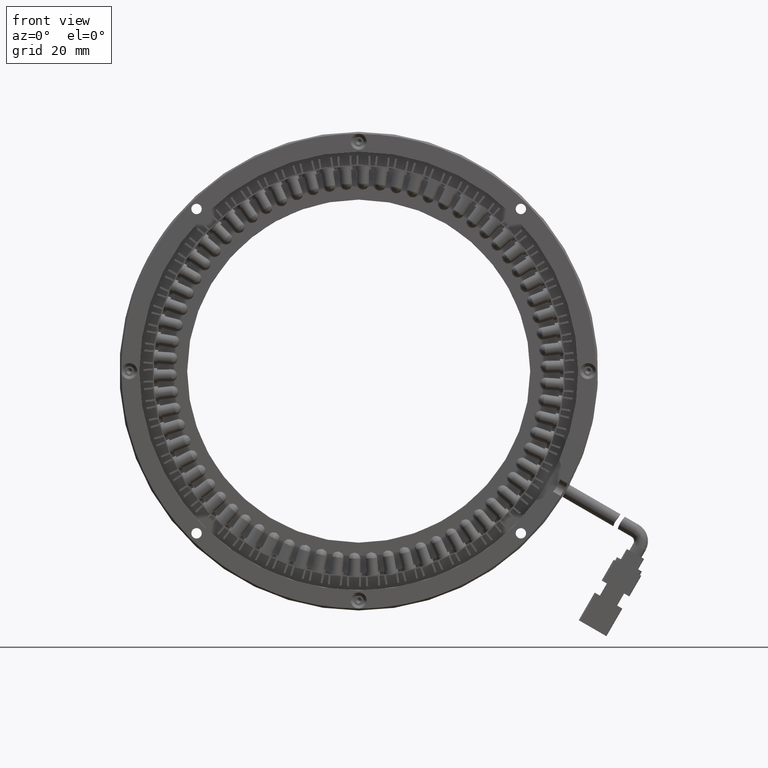
[diagram: clean part render]
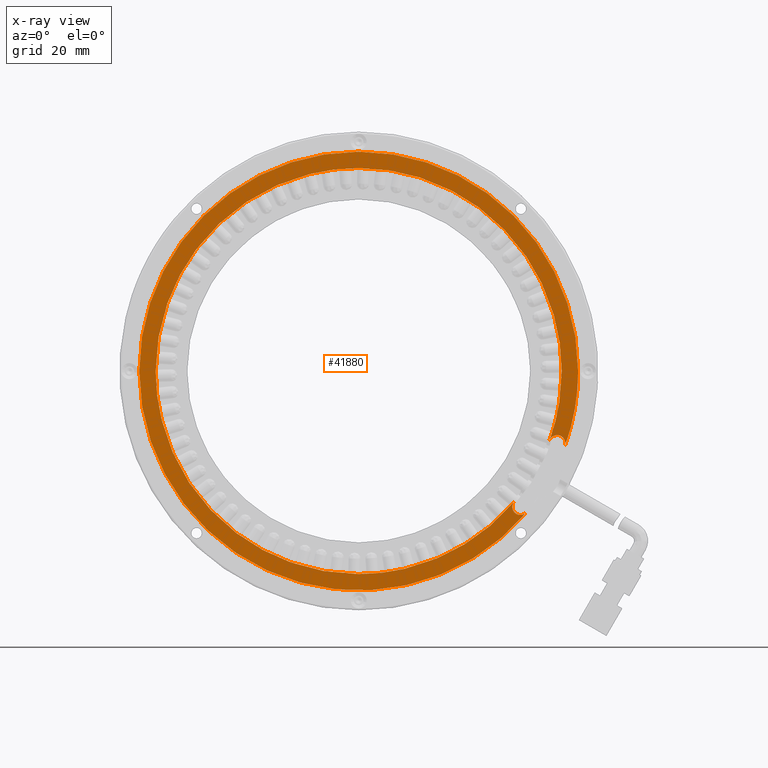
[diagram: x-ray — body ghosted, one internal face saturated and labeled with its STEP entity id]
A machine part, front view, then the same camera in x-ray: the body is ghosted and one INTERNAL B-rep face — a face not visible from any outside direction — is saturated and labeled: STEP entity #41880.
In plain terms, the highlighted planar face has unit normal (0, -1, 0).
Its self-contained STEP definition (entity closure, byte-faithful):
#260 = CARTESIAN_POINT ( 'NONE',  ( 33.89803467176491100, 26.51889671361999800, 45.74980730221788900 ) ) ;
#2141 = CARTESIAN_POINT ( 'NONE',  ( 108.2100366687376400, 26.51889671361999800, -17.57448026055307400 ) ) ;
#2214 = VERTEX_POINT ( 'NONE', #11211 ) ;
#2460 = EDGE_CURVE ( 'NONE', #64003, #14869, #48027, .T. ) ;
#2951 = CARTESIAN_POINT ( 'NONE',  ( 94.99566523257891500, 26.51889671361999800, -34.54901367626943900 ) ) ;
#3409 = CARTESIAN_POINT ( 'NONE',  ( 58.12378614070481600, 26.51889671362000600, 50.90000000000001300 ) ) ;
#3610 = CARTESIAN_POINT ( 'NONE',  ( 1.456245109549989100, 26.51889671361700000, 6.735557395310442600E-015 ) ) ;
#3634 = CARTESIAN_POINT ( 'NONE',  ( 64.75260245585306500, 26.51889671361999500, 50.24703753962068500 ) ) ;
#3861 = CARTESIAN_POINT ( 'NONE',  ( 93.62473146255430800, 26.51889671361999800, 34.81509095276935300 ) ) ;
#3880 = CARTESIAN_POINT ( 'NONE',  ( 94.25717763691881100, 26.51889671361999800, -34.13694564429200500 ) ) ;
#3930 = CARTESIAN_POINT ( 'NONE',  ( 56.45624510954999000, 26.51889671361700400, 0.0000000000000000000 ) ) ;
#4031 = CARTESIAN_POINT ( 'NONE',  ( 95.44790726429383200, 26.51889671361582800, -32.71788933304571900 ) ) ;
#4073 = CARTESIAN_POINT ( 'NONE',  ( 106.9479367558927800, 26.51889671362000200, 6.646161897768612500 ) ) ;
#4088 = CARTESIAN_POINT ( 'NONE',  ( 85.97272771408704300, 26.51889671361999800, -41.50927740812717600 ) ) ;
#4587 = CARTESIAN_POINT ( 'NONE',  ( 56.45624510954652200, 26.51889671361703900, -50.89999999999999900 ) ) ;
#4798 = CARTESIAN_POINT ( 'NONE',  ( 10.70644750498303900, 26.51889671361999800, -22.55824240564128000 ) ) ;
#5294 = CARTESIAN_POINT ( 'NONE',  ( 43.25682899989948300, 26.51889671362000600, 49.27162612192815100 ) ) ;
#5442 = ORIENTED_EDGE ( 'NONE', *, *, #21423, .T. ) ;
#5682 = DIRECTION ( 'NONE',  ( 0.0000000000000000000, 0.0000000000000000000, 1.000000000000000000 ) ) ;
#6713 = B_SPLINE_CURVE_WITH_KNOTS ( 'NONE', 3,
 ( #50196, #60085, #40459, #10783, #45411, #15808, #50419, #20764, #55351, #25753 ),
 .UNSPECIFIED., .F., .F.,
 ( 4, 2, 2, 2, 4 ),
 ( 0.8181776711582123800, 0.8636332533686592600, 0.9090888355791062500, 0.9545444177895531200, 1.000000000000000000 ),
 .UNSPECIFIED. ) ;
#7174 = CARTESIAN_POINT ( 'NONE',  ( 108.2629940726218200, 26.51889671361625000, -18.10996659951811300 ) ) ;
#7970 = CARTESIAN_POINT ( 'NONE',  ( 95.01120421857626800, 26.51889671361999800, -33.57493728174080900 ) ) ;
#8123 = ORIENTED_EDGE ( 'NONE', *, *, #49982, .T. ) ;
#8650 = CARTESIAN_POINT ( 'NONE',  ( 69.63857196180636300, 26.51889671361999500, 49.19161618714368700 ) ) ;
#8794 = CARTESIAN_POINT ( 'NONE',  ( 108.2629940726218200, 26.51889671361625000, -18.10996659951811300 ) ) ;
#8799 = EDGE_CURVE ( 'NONE', #15514, #55473, #43258, .T. ) ;
#8874 = CARTESIAN_POINT ( 'NONE',  ( 96.85871171428804900, 26.51889671361999800, 31.00377232226369600 ) ) ;
#8943 = DIRECTION ( 'NONE',  ( 1.000000000000000000, 6.308085367188390000E-017, 0.0000000000000000000 ) ) ;
#8975 = B_SPLINE_CURVE_WITH_KNOTS ( 'NONE', 3,
 ( #9484, #39195, #44121, #14491 ),
 .UNSPECIFIED., .F., .F.,
 ( 4, 4 ),
 ( 0.8182654502144257600, 1.000000000000000000 ),
 .UNSPECIFIED. ) ;
#9088 = CARTESIAN_POINT ( 'NONE',  ( 107.3562008130526700, 26.51889671361999800, 1.666455289235170100 ) ) ;
#9103 = CARTESIAN_POINT ( 'NONE',  ( 81.27830641589346800, 26.51889671361999800, -44.47592752031182100 ) ) ;
#9484 = CARTESIAN_POINT ( 'NONE',  ( 108.2629940726218200, 26.51889671361625000, -18.10996659951811300 ) ) ;
#9600 = CARTESIAN_POINT ( 'NONE',  ( 49.80849226404254900, 26.51889671362000600, -50.49155327858623800 ) ) ;
#9823 = CARTESIAN_POINT ( 'NONE',  ( 7.184622262506801200, 26.51889671361999800, -13.19944935610017100 ) ) ;
#9929 = EDGE_CURVE ( 'NONE', #62985, #2214, #6713, .T. ) ;
#10106 = CARTESIAN_POINT ( 'NONE',  ( 7.184541814664910000, 26.51889671361999800, 13.19939738584012500 ) ) ;
#10139 = ORIENTED_EDGE ( 'NONE', *, *, #8799, .T. ) ;
#10319 = CARTESIAN_POINT ( 'NONE',  ( 49.80832919296634000, 26.51889671361999800, 50.49150431269133300 ) ) ;
#10433 = CARTESIAN_POINT ( 'NONE',  ( 108.1393392527727400, 26.51889671361639600, -18.81110788290745400 ) ) ;
#10783 = CARTESIAN_POINT ( 'NONE',  ( 107.0335753954914800, 26.51889671361999800, -5.910449698887409100 ) ) ;
#11211 = CARTESIAN_POINT ( 'NONE',  ( 104.2865995075451200, 26.51889671361615100, -17.40882529527371900 ) ) ;
#11445 = ORIENTED_EDGE ( 'NONE', *, *, #60926, .T. ) ;
#11798 = CARTESIAN_POINT ( 'NONE',  ( 97.31801767398215500, 26.51889671361999800, -36.08560393289999300 ) ) ;
#11846 = B_SPLINE_CURVE_WITH_KNOTS ( 'NONE', 3,
 ( #25802, #15636, #45682, #16068, #50675, #21027, #55621, #26011, #60564, #30961 ),
 .UNSPECIFIED., .F., .F.,
 ( 4, 2, 2, 2, 4 ),
 ( 0.0000000000000000000, 0.2500000000000000000, 0.5000000000000000000, 0.7500000000000000000, 1.000000000000000000 ),
 .UNSPECIFIED. ) ;
#12944 = CARTESIAN_POINT ( 'NONE',  ( 95.22037118512243100, 26.51889671361999800, -33.03152639169043400 ) ) ;
#13624 = CARTESIAN_POINT ( 'NONE',  ( 74.39672999791444900, 26.51889671361999800, 47.66257905183898200 ) ) ;
#13845 = CARTESIAN_POINT ( 'NONE',  ( 99.70370530092894500, 26.51889671361999800, 26.89335504278859200 ) ) ;
#14096 = CARTESIAN_POINT ( 'NONE',  ( 76.28881724357131600, 26.51889671361999800, -46.91387789170980900 ) ) ;
#14401 = VERTEX_POINT ( 'NONE', #17211 ) ;
#14491 = CARTESIAN_POINT ( 'NONE',  ( 108.1393392527727400, 26.51889671361639600, -18.81110788290745400 ) ) ;
#14613 = CARTESIAN_POINT ( 'NONE',  ( 43.25678297674848200, 26.51889671362000600, -49.27168707802127300 ) ) ;
#14839 = CARTESIAN_POINT ( 'NONE',  ( 5.556277853956411100, 26.51889671362000200, -3.333375449674135000 ) ) ;
#14869 = VERTEX_POINT ( 'NONE', #51561 ) ;
#15107 = CARTESIAN_POINT ( 'NONE',  ( 10.70635846373137800, 26.51889671361999800, 22.55820712775216200 ) ) ;
#15331 = CARTESIAN_POINT ( 'NONE',  ( 54.78904028817538600, 26.51889671362000200, 50.90000000000001300 ) ) ;
#15514 = VERTEX_POINT ( 'NONE', #21985 ) ;
#15636 = CARTESIAN_POINT ( 'NONE',  ( 104.3584792415676800, 26.51889671361999800, -17.21133734924919900 ) ) ;
#15808 = CARTESIAN_POINT ( 'NONE',  ( 106.3261792178825700, 26.51889671361999800, -10.29540515301082200 ) ) ;
#16068 = CARTESIAN_POINT ( 'NONE',  ( 104.7143801546050700, 26.51889671361999800, -16.69538030267937900 ) ) ;
#16103 = CARTESIAN_POINT ( 'NONE',  ( 106.4823319166383400, 26.51889671361999800, -16.05996658908999900 ) ) ;
#17211 = CARTESIAN_POINT ( 'NONE',  ( 56.45624510953188500, 26.51889671361704600, 50.90000000000001300 ) ) ;
#17218 = ORIENTED_EDGE ( 'NONE', *, *, #33366, .T. ) ;
#17678 = AXIS2_PLACEMENT_3D ( 'NONE', #56667, #41514, #55129 ) ;
#17752 = CARTESIAN_POINT ( 'NONE',  ( 97.01829837268245200, 26.51889671361625000, -36.08560393289998600 ) ) ;
#17966 = CARTESIAN_POINT ( 'NONE',  ( 95.44790726429383200, 26.51889671361582800, -32.71788933304571900 ) ) ;
#18614 = ORIENTED_EDGE ( 'NONE', *, *, #61867, .T. ) ;
#18661 = CARTESIAN_POINT ( 'NONE',  ( 78.98088627312654400, 26.51889671362000200, 45.67519132533117000 ) ) ;
#18866 = CARTESIAN_POINT ( 'NONE',  ( 102.1322153879976300, 26.51889671361999500, 22.52331600292138300 ) ) ;
#19093 = CARTESIAN_POINT ( 'NONE',  ( 71.06357186928032400, 26.51889671361999800, -48.79414781736165500 ) ) ;
#19596 = CARTESIAN_POINT ( 'NONE',  ( 33.89797764238963400, 26.51889671362000200, -45.74985810894369800 ) ) ;
#19818 = B_SPLINE_CURVE_WITH_KNOTS ( 'NONE', 3,
 ( #17752, #62053, #27678, #62255, #32674, #2951, #37644, #7970, #42620, #12944, #47580, #17966 ),
 .UNSPECIFIED., .F., .F.,
 ( 4, 2, 2, 2, 2, 4 ),
 ( 0.0000000000000000000, 0.2500000000000000000, 0.5000000000000000000, 0.7500000000000000000, 0.8750000000000000000, 1.000000000000000000 ),
 .UNSPECIFIED. ) ;
#20074 = CARTESIAN_POINT ( 'NONE',  ( 15.98631760021237000, 26.51889671361999800, 31.05011762157835900 ) ) ;
#20106 = B_SPLINE_CURVE_WITH_KNOTS ( 'NONE', 3,
 ( #23850, #3880, #28785, #63387, #33789, #4088, #38820, #9103, #43732, #14096, #48725, #19093, #53688, #24079, #58615, #29012, #63605, #34009 ),
 .UNSPECIFIED., .F., .F.,
 ( 4, 2, 2, 2, 2, 2, 2, 2, 4 ),
 ( 0.0000000000000000000, 0.1250000000000000000, 0.2500000000000000000, 0.3750000000000000000, 0.5000000000000000000, 0.6250000000000000000, 0.7500000000000000000, 0.8750000000000000000, 1.000000000000000000 ),
 .UNSPECIFIED. ) ;
#20764 = CARTESIAN_POINT ( 'NONE',  ( 105.2387383753806300, 26.51889671361999800, -14.60417290471351100 ) ) ;
#21027 = CARTESIAN_POINT ( 'NONE',  ( 105.2091137337671400, 26.51889671361999800, -16.31021719822989600 ) ) ;
#21309 = ORIENTED_EDGE ( 'NONE', *, *, #9929, .T. ) ;
#21423 = EDGE_CURVE ( 'NONE', #54149, #60811, #8975, .T. ) ;
#21871 = CARTESIAN_POINT ( 'NONE',  ( 107.3562518457098800, 26.51889671361706700, 4.670248026143931300E-010 ) ) ;
#21961 = CARTESIAN_POINT ( 'NONE',  ( 106.7495667950427000, 26.51889671362000200, -16.11324002181363800 ) ) ;
#21985 = CARTESIAN_POINT ( 'NONE',  ( 98.58868948107824800, 26.51889671361639600, -35.35331853275853600 ) ) ;
#23564 = EDGE_CURVE ( 'NONE', #56010, #23963, #39183, .T. ) ;
#23609 = CARTESIAN_POINT ( 'NONE',  ( 83.34815160613703700, 26.51889671361999800, 43.24833604363151100 ) ) ;
#23833 = CARTESIAN_POINT ( 'NONE',  ( 104.1188513475901900, 26.51889671361999800, 17.94038577706800900 ) ) ;
#23850 = CARTESIAN_POINT ( 'NONE',  ( 95.44790726429383200, 26.51889671361582800, -32.71788933304571900 ) ) ;
#23963 = VERTEX_POINT ( 'NONE', #58202 ) ;
#24079 = CARTESIAN_POINT ( 'NONE',  ( 65.66468447562010600, 26.51889671361999800, -50.09438592028164500 ) ) ;
#24562 = CARTESIAN_POINT ( 'NONE',  ( 25.40607387520768200, 26.51889671362000900, -40.46988774913664600 ) ) ;
#25066 = CARTESIAN_POINT ( 'NONE',  ( 22.82151335499334300, 26.51889671361999100, 38.34878950799058800 ) ) ;
#25157 = AXIS2_PLACEMENT_3D ( 'NONE', #45116, #35378, #5682 ) ;
#25553 = CIRCLE ( 'NONE', #47729, 55.00000000000000000 ) ;
#25753 = CARTESIAN_POINT ( 'NONE',  ( 104.2865995075451200, 26.51889671361615100, -17.40882529527371900 ) ) ;
#25802 = CARTESIAN_POINT ( 'NONE',  ( 104.2865995075451200, 26.51889671361615100, -17.40882529527371900 ) ) ;
#25882 = AXIS2_PLACEMENT_3D ( 'NONE', #3930, #38650, #8943 ) ;
#26011 = CARTESIAN_POINT ( 'NONE',  ( 105.7969494481962400, 26.51889671361999800, -16.09159333941204700 ) ) ;
#26912 = CARTESIAN_POINT ( 'NONE',  ( 107.4732465400562800, 26.51889671361999800, -16.47111114605650800 ) ) ;
#27678 = CARTESIAN_POINT ( 'NONE',  ( 96.24538661284874800, 26.51889671362000200, -35.97374348096554500 ) ) ;
#27928 = DIRECTION ( 'NONE',  ( -3.154042683594195600E-017, 1.000000000000000000, -0.0000000000000000000 ) ) ;
#28470 = CARTESIAN_POINT ( 'NONE',  ( 56.45624510954652200, 26.51889671361703900, -50.89999999999999900 ) ) ;
#28548 = CARTESIAN_POINT ( 'NONE',  ( 87.45868745237682200, 26.51889671362000600, 40.40351379886799100 ) ) ;
#28768 = CARTESIAN_POINT ( 'NONE',  ( 105.6475732304488000, 26.51889671361999500, 13.18320469791620500 ) ) ;
#28785 = CARTESIAN_POINT ( 'NONE',  ( 92.99225552372956800, 26.51889671362000200, -35.48744807836808900 ) ) ;
#29012 = CARTESIAN_POINT ( 'NONE',  ( 60.15615057892195200, 26.51889671361999800, -50.79915587183834400 ) ) ;
#29513 = CARTESIAN_POINT ( 'NONE',  ( 18.10741077590907400, 26.51889671361999800, -33.63468229911563200 ) ) ;
#30005 = CARTESIAN_POINT ( 'NONE',  ( 30.94927298822892700, 26.51889671361999800, 44.17373891951346100 ) ) ;
#30016 = ORIENTED_EDGE ( 'NONE', *, *, #23564, .T. ) ;
#30398 = PLANE ( 'NONE',  #25157 ) ;
#30961 = CARTESIAN_POINT ( 'NONE',  ( 106.2129693801686300, 26.51889671361549400, -16.05996658908999900 ) ) ;
#31508 = CARTESIAN_POINT ( 'NONE',  ( 98.39651065991415600, 26.51889671361999800, -35.58234833331888300 ) ) ;
#31877 = CARTESIAN_POINT ( 'NONE',  ( 108.0037992282614700, 26.51889671361999800, -17.07644587213456000 ) ) ;
#32674 = CARTESIAN_POINT ( 'NONE',  ( 95.32506958597103600, 26.51889671361999800, -35.25492906266791200 ) ) ;
#33345 = CARTESIAN_POINT ( 'NONE',  ( 63.10249768488622400, 26.51889671361999500, 50.49167047696528200 ) ) ;
#33366 = EDGE_CURVE ( 'NONE', #14401, #62985, #61692, .T. ) ;
#33561 = CARTESIAN_POINT ( 'NONE',  ( 91.27043481988675900, 26.51889671361999800, 37.16939900917218200 ) ) ;
#33763 = CARTESIAN_POINT ( 'NONE',  ( 106.7029969966896200, 26.51889671361999800, 8.297855721284209500 ) ) ;
#33789 = CARTESIAN_POINT ( 'NONE',  ( 88.91167597810736800, 26.51889671361999800, -39.25409263351545500 ) ) ;
#34009 = CARTESIAN_POINT ( 'NONE',  ( 56.45624510954652200, 26.51889671361703900, -50.89999999999999900 ) ) ;
#34287 = CARTESIAN_POINT ( 'NONE',  ( 54.78937442624786800, 26.51889671362000200, -50.89999999999999100 ) ) ;
#34497 = CARTESIAN_POINT ( 'NONE',  ( 12.28247187426224900, 26.51889671361999500, -25.50691487160292000 ) ) ;
#34996 = CARTESIAN_POINT ( 'NONE',  ( 40.05728213256652000, 26.51889671362000200, 48.30112910743011400 ) ) ;
#35378 = DIRECTION ( 'NONE',  ( 0.0000000000000000000, -1.000000000000000000, 0.0000000000000000000 ) ) ;
#36497 = CARTESIAN_POINT ( 'NONE',  ( 98.58868948107824800, 26.51889671361639600, -35.35331853275853600 ) ) ;
#36851 = CARTESIAN_POINT ( 'NONE',  ( 108.2630753145470200, 26.51889671361999800, -17.84216602957619800 ) ) ;
#36991 = VERTEX_POINT ( 'NONE', #4031 ) ;
#37275 = EDGE_LOOP ( 'NONE', ( #17218, #21309, #59672, #11445, #5442, #41491, #54024, #40622, #10139, #59241, #8123, #30016, #18614 ) ) ;
#37644 = CARTESIAN_POINT ( 'NONE',  ( 94.93510078349844200, 26.51889671361999500, -34.15420115306560000 ) ) ;
#38335 = CARTESIAN_POINT ( 'NONE',  ( 68.01859964645936400, 26.51889671361999500, 49.59733465117089000 ) ) ;
#38577 = CARTESIAN_POINT ( 'NONE',  ( 94.74633405153107900, 26.51889671362000200, 33.57758869319515300 ) ) ;
#38650 = DIRECTION ( 'NONE',  ( -3.154042683594195600E-017, 1.000000000000000000, -0.0000000000000000000 ) ) ;
#38806 = CARTESIAN_POINT ( 'NONE',  ( 107.2744866105402800, 26.51889671361999800, 3.331847257112134000 ) ) ;
#38820 = CARTESIAN_POINT ( 'NONE',  ( 84.44530148395654100, 26.51889671361999800, -42.55410091418872300 ) ) ;
#39183 = B_SPLINE_CURVE_WITH_KNOTS ( 'NONE', 3,
 ( #4587, #34287, #39317, #9600, #44236, #14613, #49217, #19596, #54191, #24562, #59118, #29513, #64105, #34497, #4798, #39533, #9823, #44439, #14839, #49437 ),
 .UNSPECIFIED., .F., .F.,
 ( 4, 2, 2, 2, 2, 2, 2, 2, 2, 4 ),
 ( 0.0000000000000000000, 0.03124999999999993100, 0.06249999999999986100, 0.1249999999999998900, 0.1874999999999999200, 0.2499999999999999400, 0.3124999999999999400, 0.3750000000000000000, 0.4375000000000000000, 0.5000000000000000000 ),
 .UNSPECIFIED. ) ;
#39195 = CARTESIAN_POINT ( 'NONE',  ( 108.2629685270748800, 26.51889671361999800, -18.34787773702494500 ) ) ;
#39317 = CARTESIAN_POINT ( 'NONE',  ( 53.12585306952841800, 26.51889671361999800, -50.81825189664540700 ) ) ;
#39533 = CARTESIAN_POINT ( 'NONE',  ( 8.155106304472967700, 26.51889671361999800, -16.39893100913700500 ) ) ;
#39786 = CARTESIAN_POINT ( 'NONE',  ( 5.884006859384389700, 26.51889671362000200, 6.660797395392687100 ) ) ;
#39918 = EDGE_CURVE ( 'NONE', #2214, #63956, #11846, .T. ) ;
#39998 = CARTESIAN_POINT ( 'NONE',  ( 48.16080707844287900, 26.51889671361999800, 50.24714309782238800 ) ) ;
#40459 = CARTESIAN_POINT ( 'NONE',  ( 107.2917835663834700, 26.51889671362000200, -2.959691800880913400 ) ) ;
#40622 = ORIENTED_EDGE ( 'NONE', *, *, #62163, .F. ) ;
#40724 = CARTESIAN_POINT ( 'NONE',  ( 97.01829837268245200, 26.51889671361625000, -36.08560393289998600 ) ) ;
#41463 = CARTESIAN_POINT ( 'NONE',  ( 97.61406226859531900, 26.51889671361999800, -36.01980779823271200 ) ) ;
#41491 = ORIENTED_EDGE ( 'NONE', *, *, #55101, .F. ) ;
#41514 = DIRECTION ( 'NONE',  ( -3.154042683594195600E-017, 1.000000000000000000, -0.0000000000000000000 ) ) ;
#41880 = ADVANCED_FACE ( 'NONE', ( #61031 ), #30398, .T. ) ;
#42620 = CARTESIAN_POINT ( 'NONE',  ( 95.06344849588772700, 26.51889671361999800, -33.38842004568898900 ) ) ;
#42639 = CARTESIAN_POINT ( 'NONE',  ( 106.2129693801686300, 26.51889671361549400, -16.05996658908999900 ) ) ;
#43258 = B_SPLINE_CURVE_WITH_KNOTS ( 'NONE', 3,
 ( #36497, #31508, #60910, #41463, #11798, #46441 ),
 .UNSPECIFIED., .F., .F.,
 ( 4, 2, 4 ),
 ( 0.0000000000000000000, 0.5000000000000000000, 1.000000000000000000 ),
 .UNSPECIFIED. ) ;
#43301 = CARTESIAN_POINT ( 'NONE',  ( 72.82459506337231400, 26.51889671362000200, 48.22517476861667500 ) ) ;
#43512 = CARTESIAN_POINT ( 'NONE',  ( 97.85275939107180000, 26.51889671362000200, 29.66327168743788400 ) ) ;
#43708 = CARTESIAN_POINT ( 'NONE',  ( 107.3562518457098800, 26.51889671361706700, 4.670248026143931300E-010 ) ) ;
#43732 = CARTESIAN_POINT ( 'NONE',  ( 79.64621202074329200, 26.51889671361999800, -45.34825482861585000 ) ) ;
#44121 = CARTESIAN_POINT ( 'NONE',  ( 108.2213692306013500, 26.51889671361999800, -18.58573237121041500 ) ) ;
#44236 = CARTESIAN_POINT ( 'NONE',  ( 48.16083009003381200, 26.51889671361999800, -50.24711261977888900 ) ) ;
#44439 = CARTESIAN_POINT ( 'NONE',  ( 5.883926411546610800, 26.51889671361999800, -6.660745425153272900 ) ) ;
#44506 = CARTESIAN_POINT ( 'NONE',  ( 5.556245109549984700, 26.51889671361847100, -5.260106464506403600E-012 ) ) ;
#44727 = CARTESIAN_POINT ( 'NONE',  ( 8.155195345716574500, 26.51889671361999800, 16.39896628700667600 ) ) ;
#44945 = CARTESIAN_POINT ( 'NONE',  ( 53.12601614058372900, 26.51889671361999800, 50.81830086253827300 ) ) ;
#45116 = CARTESIAN_POINT ( 'NONE',  ( 113.6891704186999900, 26.51889671361999800, -57.19999999999999600 ) ) ;
#45411 = CARTESIAN_POINT ( 'NONE',  ( 106.8401199260077700, 26.51889671361999800, -7.380743873133185100 ) ) ;
#45682 = CARTESIAN_POINT ( 'NONE',  ( 104.4588099106009100, 26.51889671362000200, -17.02863101656479100 ) ) ;
#45721 = CARTESIAN_POINT ( 'NONE',  ( 106.2129693801686300, 26.51889671361549400, -16.05996658908999900 ) ) ;
#46441 = CARTESIAN_POINT ( 'NONE',  ( 97.01829837268245200, 26.51889671361625000, -36.08560393289998600 ) ) ;
#46951 = B_SPLINE_CURVE_WITH_KNOTS ( 'NONE', 3,
 ( #44506, #49502, #39786, #10106, #44727, #15107, #49724, #20074, #54666, #25066, #59619, #30005, #260, #34996, #5294, #39998, #10319, #44945, #15331, #49933 ),
 .UNSPECIFIED., .F., .F.,
 ( 4, 2, 2, 2, 2, 2, 2, 2, 2, 4 ),
 ( 0.5000000000000000000, 0.5625000000000000000, 0.6250000000000000000, 0.6875000000000000000, 0.7500000000000000000, 0.8125000000000000000, 0.8750000000000000000, 0.9375000000000000000, 0.9687500000000000000, 1.000000000000000000 ),
 .UNSPECIFIED. ) ;
#47380 = B_SPLINE_CURVE_WITH_KNOTS ( 'NONE', 3,
 ( #45721, #16103, #21961, #56531, #26912, #61482, #31877, #2141, #36851, #7174 ),
 .UNSPECIFIED., .F., .F.,
 ( 4, 2, 2, 2, 4 ),
 ( 0.0000000000000000000, 0.2045663625536064400, 0.4091327251072128800, 0.6136990876608192600, 0.8182654502144257600 ),
 .UNSPECIFIED. ) ;
#47580 = CARTESIAN_POINT ( 'NONE',  ( 95.32237032638940400, 26.51889671362000200, -32.86749842980808000 ) ) ;
#47729 = AXIS2_PLACEMENT_3D ( 'NONE', #57529, #27928, #62520 ) ;
#48027 = CIRCLE ( 'NONE', #17678, 55.00000000000000000 ) ;
#48265 = CARTESIAN_POINT ( 'NONE',  ( 77.47361066575641100, 26.51889671362000600, 46.38820226874730700 ) ) ;
#48482 = CARTESIAN_POINT ( 'NONE',  ( 100.5595965003141400, 26.51889671361999500, 25.46536390588529700 ) ) ;
#48693 = EDGE_CURVE ( 'NONE', #55473, #36991, #19818, .T. ) ;
#48725 = CARTESIAN_POINT ( 'NONE',  ( 74.57145591769544500, 26.51889671361999800, -47.60333936523537100 ) ) ;
#49217 = CARTESIAN_POINT ( 'NONE',  ( 40.05733916196127400, 26.51889671361999800, -48.30107830071237600 ) ) ;
#49437 = CARTESIAN_POINT ( 'NONE',  ( 5.556245109549984700, 26.51889671361847100, -5.260106464506403600E-012 ) ) ;
#49502 = CARTESIAN_POINT ( 'NONE',  ( 5.556212365143554000, 26.51889671361999800, 3.333375449663616300 ) ) ;
#49724 = CARTESIAN_POINT ( 'NONE',  ( 12.28256608648485400, 26.51889671362000600, 25.50693209981170300 ) ) ;
#49933 = CARTESIAN_POINT ( 'NONE',  ( 56.45624510953188500, 26.51889671361704600, 50.90000000000001300 ) ) ;
#49982 = EDGE_CURVE ( 'NONE', #36991, #56010, #20106, .T. ) ;
#50196 = CARTESIAN_POINT ( 'NONE',  ( 107.3562518457098800, 26.51889671361706700, 4.670248026143931300E-010 ) ) ;
#50419 = CARTESIAN_POINT ( 'NONE',  ( 106.0048858447456900, 26.51889671361999800, -11.74451062858221700 ) ) ;
#50675 = CARTESIAN_POINT ( 'NONE',  ( 104.8651616375936000, 26.51889671361999800, -16.55119259836519400 ) ) ;
#50789 = CIRCLE ( 'NONE', #25882, 55.00000000000000000 ) ;
#51561 = CARTESIAN_POINT ( 'NONE',  ( 111.4562451095500000, 26.51889671361700700, 0.0000000000000000000 ) ) ;
#53261 = CARTESIAN_POINT ( 'NONE',  ( 81.92029611412967000, 26.51889671362000200, 44.10415437209533700 ) ) ;
#53467 = CARTESIAN_POINT ( 'NONE',  ( 102.8437276067713200, 26.51889671362000200, 21.01895412697521700 ) ) ;
#53688 = CARTESIAN_POINT ( 'NONE',  ( 69.28135844239513100, 26.51889671361999800, -49.29254760452393900 ) ) ;
#54024 = ORIENTED_EDGE ( 'NONE', *, *, #2460, .F. ) ;
#54149 = VERTEX_POINT ( 'NONE', #8794 ) ;
#54191 = CARTESIAN_POINT ( 'NONE',  ( 30.94936662251100400, 26.51889671361999800, -44.17371878327195800 ) ) ;
#54666 = CARTESIAN_POINT ( 'NONE',  ( 18.10750653931237900, 26.51889671361999500, 33.63468081679621900 ) ) ;
#55101 = EDGE_CURVE ( 'NONE', #14869, #60811, #25553, .T. ) ;
#55129 = DIRECTION ( 'NONE',  ( 1.000000000000000000, 6.308085367188390000E-017, 0.0000000000000000000 ) ) ;
#55351 = CARTESIAN_POINT ( 'NONE',  ( 104.7936675078781700, 26.51889671361999800, -16.01566741425359600 ) ) ;
#55473 = VERTEX_POINT ( 'NONE', #40724 ) ;
#55621 = CARTESIAN_POINT ( 'NONE',  ( 105.3960955342362800, 26.51889671361999800, -16.21810034070021800 ) ) ;
#56010 = VERTEX_POINT ( 'NONE', #28470 ) ;
#56531 = CARTESIAN_POINT ( 'NONE',  ( 107.2448028913066100, 26.51889671361999800, -16.31846984271663100 ) ) ;
#56667 = CARTESIAN_POINT ( 'NONE',  ( 56.45624510954999000, 26.51889671361700400, 0.0000000000000000000 ) ) ;
#57529 = CARTESIAN_POINT ( 'NONE',  ( 56.45624510954999000, 26.51889671361700400, 0.0000000000000000000 ) ) ;
#58165 = CARTESIAN_POINT ( 'NONE',  ( 86.12016373316362200, 26.51889671362000200, 41.39609968301202500 ) ) ;
#58202 = CARTESIAN_POINT ( 'NONE',  ( 5.556245109549984700, 26.51889671361847100, -5.260106464506403600E-012 ) ) ;
#58379 = CARTESIAN_POINT ( 'NONE',  ( 104.6809622507520700, 26.51889671362000200, 16.36981925736114700 ) ) ;
#58615 = CARTESIAN_POINT ( 'NONE',  ( 63.83898750012691200, 26.51889671361999800, -50.39577935919173500 ) ) ;
#59118 = CARTESIAN_POINT ( 'NONE',  ( 22.82160911841152300, 26.51889671362000200, -38.34878802568606900 ) ) ;
#59241 = ORIENTED_EDGE ( 'NONE', *, *, #48693, .T. ) ;
#59619 = CARTESIAN_POINT ( 'NONE',  ( 25.40616750947226200, 26.51889671361999100, 40.46986761288341900 ) ) ;
#59672 = ORIENTED_EDGE ( 'NONE', *, *, #39918, .T. ) ;
#60085 = CARTESIAN_POINT ( 'NONE',  ( 107.3563099333608900, 26.51889671361999800, -1.481334884097189600 ) ) ;
#60564 = CARTESIAN_POINT ( 'NONE',  ( 106.0024317445241500, 26.51889671361999800, -16.05996658908999900 ) ) ;
#60811 = VERTEX_POINT ( 'NONE', #10433 ) ;
#60910 = CARTESIAN_POINT ( 'NONE',  ( 98.15526934994197500, 26.51889671362000200, -35.76726199441731800 ) ) ;
#60926 = EDGE_CURVE ( 'NONE', #63956, #54149, #47380, .T. ) ;
#61031 = FACE_OUTER_BOUND ( 'NONE', #37275, .T. ) ;
#61482 = CARTESIAN_POINT ( 'NONE',  ( 107.8521202247297500, 26.51889671361999800, -16.84984560682197200 ) ) ;
#61692 = B_SPLINE_CURVE_WITH_KNOTS ( 'NONE', 3,
 ( #62730, #3409, #62935, #33345, #3634, #38335, #8650, #43301, #13624, #48265, #18661, #53261, #23609, #58165, #28548, #63143, #33561, #3861, #38577, #8874, #43512, #13845, #48482, #18866, #53467, #23833, #58379, #28768, #63369, #33763, #4073, #38806, #9088, #43708 ),
 .UNSPECIFIED., .F., .F.,
 ( 4, 2, 2, 2, 2, 2, 2, 2, 2, 2, 2, 2, 2, 2, 2, 2, 4 ),
 ( 0.0000000000000000000, 0.05113610444738812800, 0.1022722088947764800, 0.1534083133421648100, 0.2045444177895531800, 0.2556805222369415400, 0.3068166266843298500, 0.3579527311317182200, 0.4090888355791065800, 0.4602249400264948300, 0.5113610444738830900, 0.5624971489212713400, 0.6136332533686594800, 0.6647693578160477300, 0.7159054622634358800, 0.7670415667108242400, 0.8181776711582123800 ),
 .UNSPECIFIED. ) ;
#61867 = EDGE_CURVE ( 'NONE', #23963, #14401, #46951, .T. ) ;
#62053 = CARTESIAN_POINT ( 'NONE',  ( 96.62844504270351800, 26.51889671361999800, -36.08560393289999300 ) ) ;
#62163 = EDGE_CURVE ( 'NONE', #15514, #64003, #50789, .T. ) ;
#62255 = CARTESIAN_POINT ( 'NONE',  ( 95.58828173832982600, 26.51889671361999800, -35.55536931266763600 ) ) ;
#62520 = DIRECTION ( 'NONE',  ( 1.000000000000000000, 6.308085367188390000E-017, 0.0000000000000000000 ) ) ;
#62730 = CARTESIAN_POINT ( 'NONE',  ( 56.45624510953188500, 26.51889671361704600, 50.90000000000001300 ) ) ;
#62935 = CARTESIAN_POINT ( 'NONE',  ( 59.78654486201143200, 26.51889671362000600, 50.81833409539307700 ) ) ;
#62985 = VERTEX_POINT ( 'NONE', #21871 ) ;
#63143 = CARTESIAN_POINT ( 'NONE',  ( 90.03346181228931800, 26.51889671362000200, 38.29036378274679500 ) ) ;
#63369 = CARTESIAN_POINT ( 'NONE',  ( 106.0534228182083900, 26.51889671362000200, 11.56325347238492900 ) ) ;
#63387 = CARTESIAN_POINT ( 'NONE',  ( 90.31626377400986900, 26.51889671361999800, -38.04920325931077200 ) ) ;
#63605 = CARTESIAN_POINT ( 'NONE',  ( 58.30904260226729700, 26.51889671362000200, -50.89999999999999900 ) ) ;
#63956 = VERTEX_POINT ( 'NONE', #42639 ) ;
#64003 = VERTEX_POINT ( 'NONE', #3610 ) ;
#64105 = CARTESIAN_POINT ( 'NONE',  ( 15.98641181244665800, 26.51889671361999800, -31.05013484980462100 ) ) ;